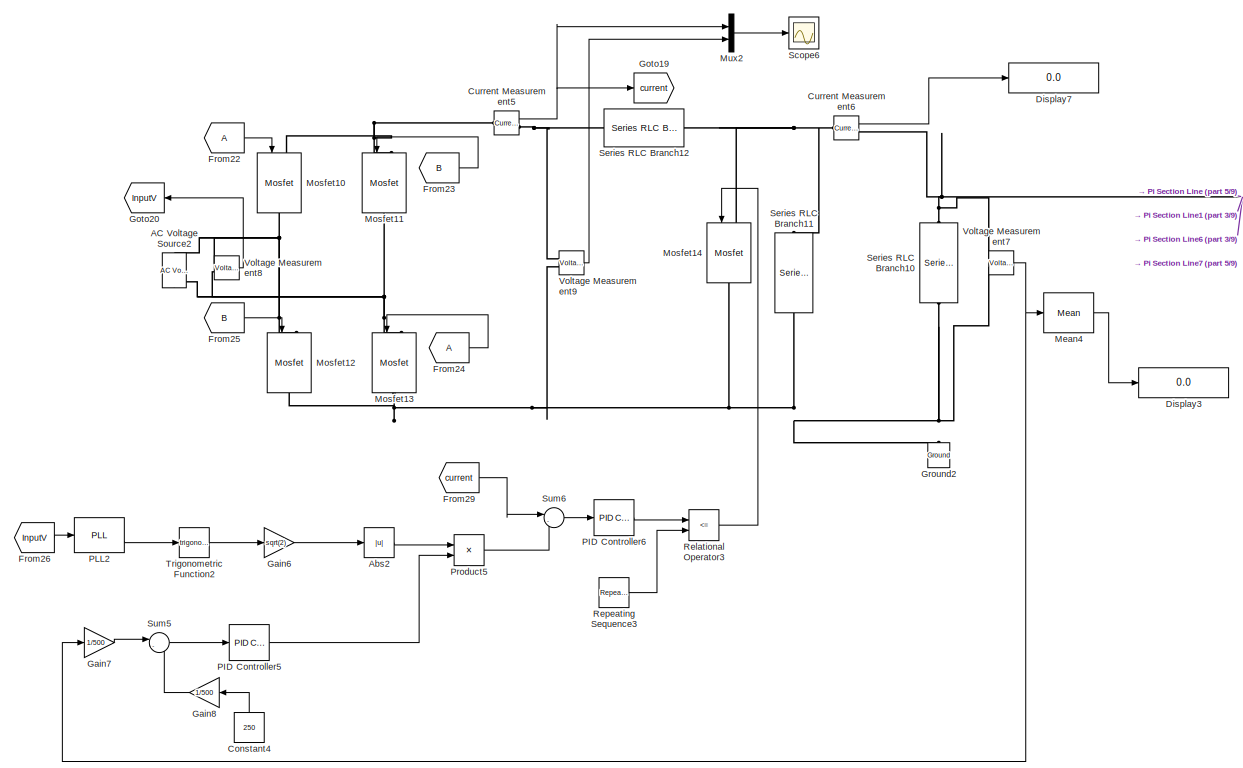
[diagram: root canvas - part 1/9, top center region]
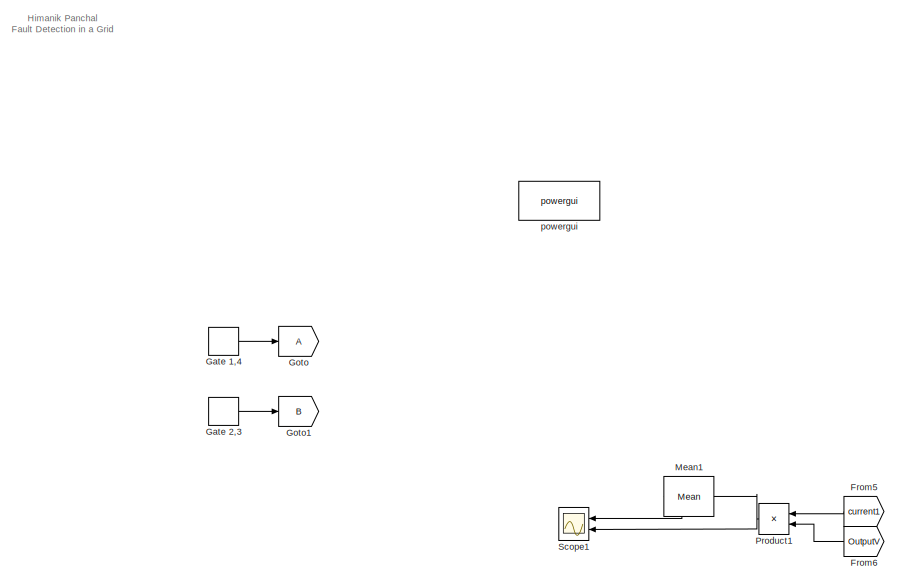
[diagram: root canvas - part 2/9, top center region]
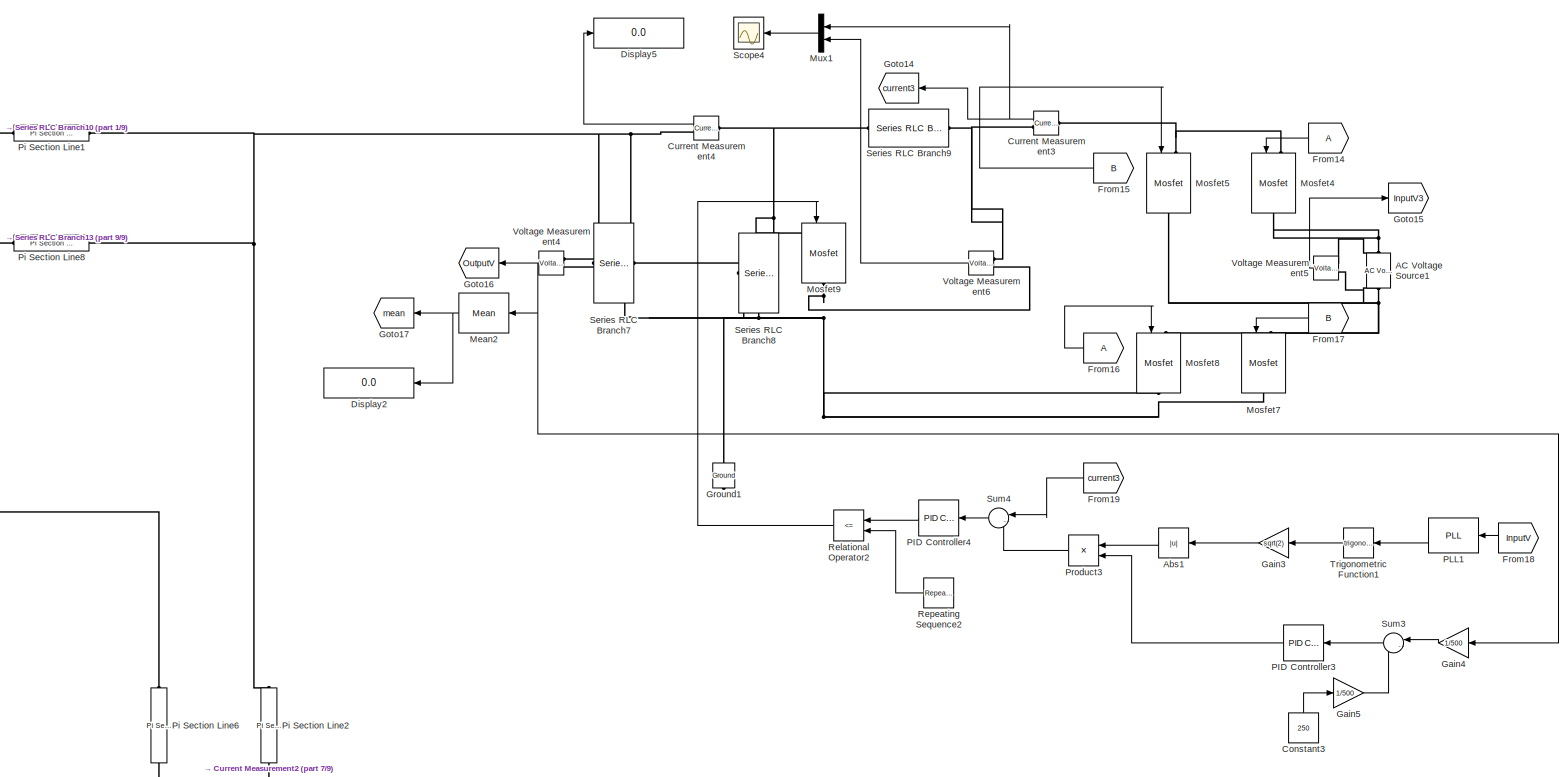
[diagram: root canvas - part 3/9, middle right region]
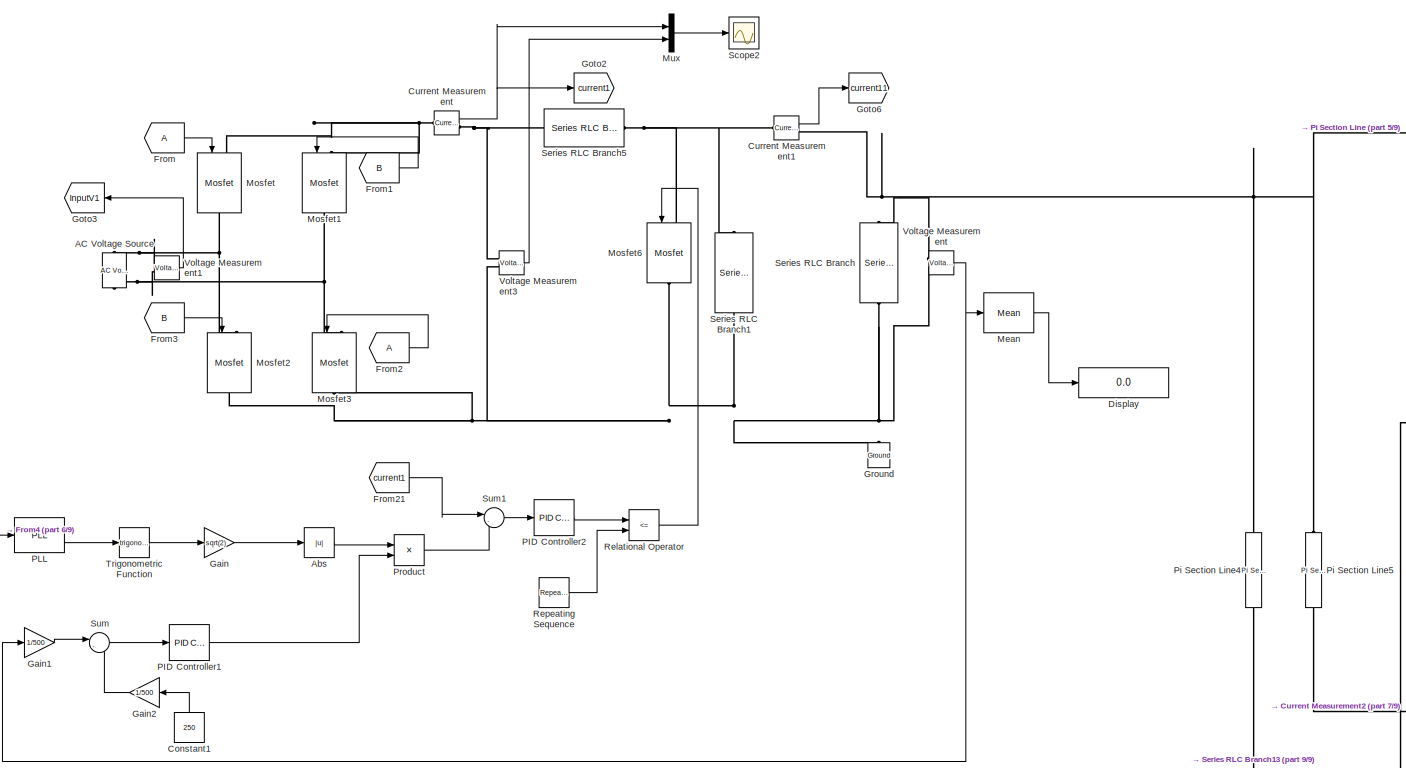
[diagram: root canvas - part 4/9, middle left region]
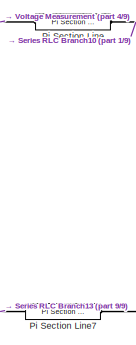
[diagram: root canvas - part 5/9, central region]
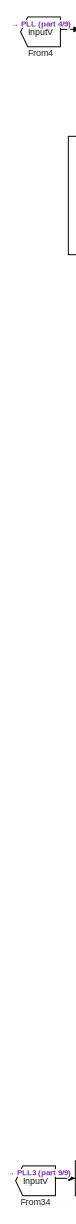
[diagram: root canvas - part 6/9, bottom left region]
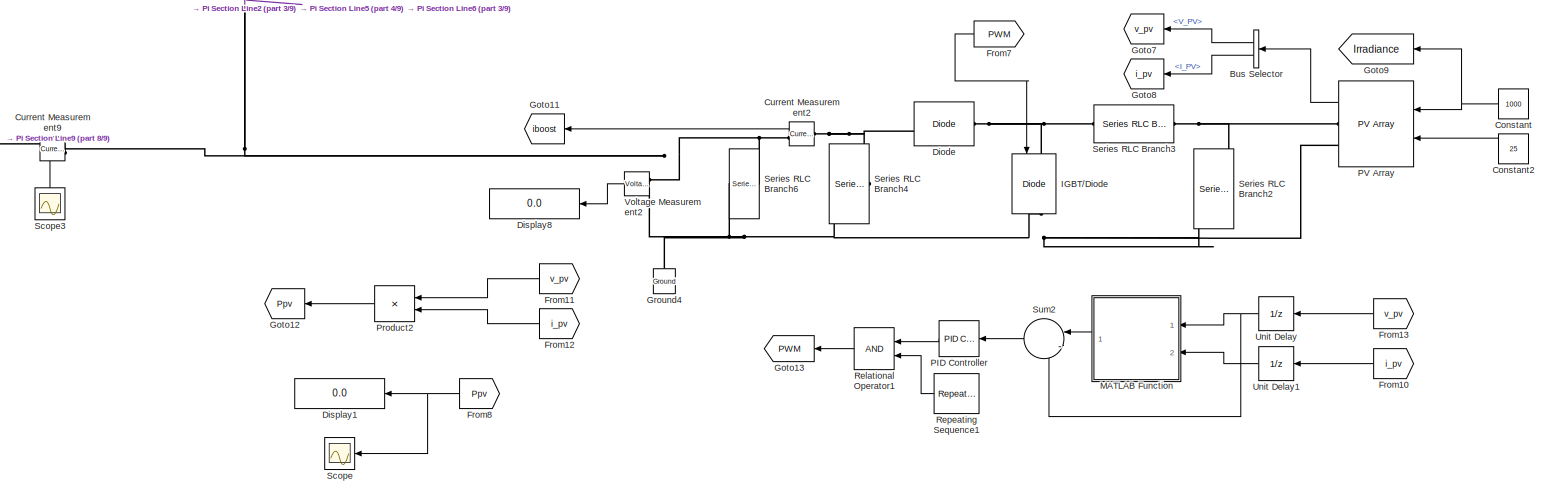
[diagram: root canvas - part 7/9, bottom right region]
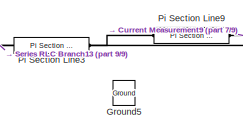
[diagram: root canvas - part 8/9, bottom center region]
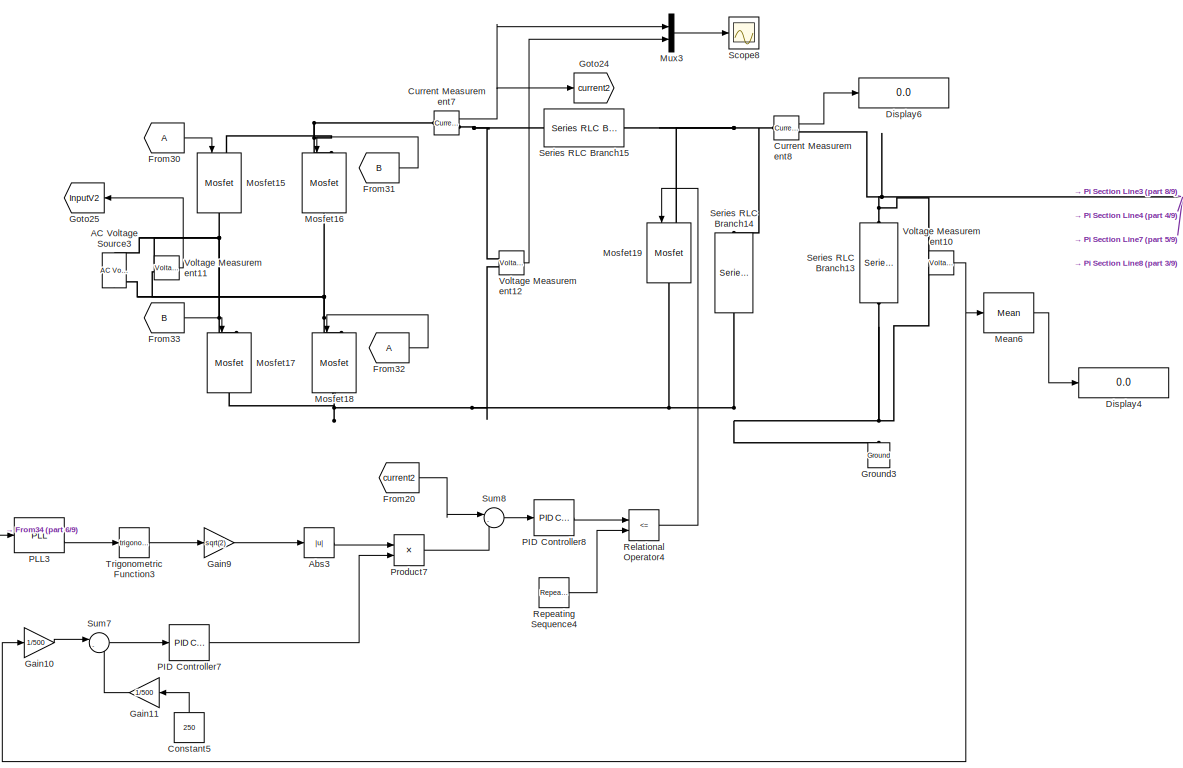
[diagram: root canvas - part 9/9, bottom left region]
MODEL slx_37d49d3421e3
KIND model
CONFIG AbsTol = auto
CONFIG EnableMultiTasking = off
CONFIG FixedStep = auto
CONFIG MaxStep = auto
CONFIG MinStep = auto
CONFIG RelTol = 1e-3
CONFIG SampleTimeConstraint = Unconstrained
CONFIG SolverName = VariableStepAuto
CONFIG StartTime = 0.0
CONFIG StopTime = 10.0
BLOCK [Reference] AC Voltage Source  REF=spsACVoltageSourceLib/AC Voltage Source
  Ports = [0, 0, 0, 0, 0, 1, 1]
  SourceBlock = spsACVoltageSourceLib/AC Voltage Source
  SourceProductBaseCode = PS
  SourceType = AC Voltage Source
BLOCK [Reference] AC Voltage Source1  REF=spsACVoltageSourceLib/AC Voltage Source
  Ports = [0, 0, 0, 0, 0, 1, 1]
  SourceBlock = spsACVoltageSourceLib/AC Voltage Source
  SourceProductBaseCode = PS
  SourceType = AC Voltage Source
BLOCK [Reference] AC Voltage Source2  REF=spsACVoltageSourceLib/AC Voltage Source
  Ports = [0, 0, 0, 0, 0, 1, 1]
  SourceBlock = spsACVoltageSourceLib/AC Voltage Source
  SourceProductBaseCode = PS
  SourceType = AC Voltage Source
BLOCK [Reference] AC Voltage Source3  REF=spsACVoltageSourceLib/AC Voltage Source
  Ports = [0, 0, 0, 0, 0, 1, 1]
  SourceBlock = spsACVoltageSourceLib/AC Voltage Source
  SourceProductBaseCode = PS
  SourceType = AC Voltage Source
BLOCK [Abs] Abs
  SaturateOnIntegerOverflow = off
BLOCK [Abs] Abs1
  SaturateOnIntegerOverflow = off
BLOCK [Abs] Abs2
  SaturateOnIntegerOverflow = off
BLOCK [Abs] Abs3
  SaturateOnIntegerOverflow = off
BLOCK [BusSelector] Bus Selector
  OutputSignals = V_PV,I_PV
  Ports = [1, 2]
BLOCK [Constant] Constant
  Value = 1000
BLOCK [Constant] Constant1
  NameLocation = right
  Value = 250
BLOCK [Constant] Constant2
  Value = 25
BLOCK [Constant] Constant3
  NameLocation = right
  Value = 250
BLOCK [Constant] Constant4
  NameLocation = right
  Value = 250
BLOCK [Constant] Constant5
  NameLocation = right
  Value = 250
BLOCK [Reference] Current Measurement  REF=spsCurrentMeasurementLib/Current Measurement
  Ports = [0, 1, 0, 0, 0, 1, 1]
  SourceBlock = spsCurrentMeasurementLib/Current Measurement
  SourceProductBaseCode = PS
  SourceType = Current Measurement
  UserDataPersistent = on
BLOCK [Reference] Current Measurement1  REF=spsCurrentMeasurementLib/Current Measurement
  Ports = [0, 1, 0, 0, 0, 1, 1]
  SourceBlock = spsCurrentMeasurementLib/Current Measurement
  SourceProductBaseCode = PS
  SourceType = Current Measurement
  UserDataPersistent = on
BLOCK [Reference] Current Measurement2  REF=spsCurrentMeasurementLib/Current Measurement
  Ports = [0, 1, 0, 0, 0, 1, 1]
  SourceBlock = spsCurrentMeasurementLib/Current Measurement
  SourceProductBaseCode = PS
  SourceType = Current Measurement
  UserDataPersistent = on
BLOCK [Reference] Current Measurement3  REF=spsCurrentMeasurementLib/Current Measurement
  Ports = [0, 1, 0, 0, 0, 1, 1]
  SourceBlock = spsCurrentMeasurementLib/Current Measurement
  SourceProductBaseCode = PS
  SourceType = Current Measurement
  UserDataPersistent = on
BLOCK [Reference] Current Measurement4  REF=spsCurrentMeasurementLib/Current Measurement
  Ports = [0, 1, 0, 0, 0, 1, 1]
  SourceBlock = spsCurrentMeasurementLib/Current Measurement
  SourceProductBaseCode = PS
  SourceType = Current Measurement
  UserDataPersistent = on
BLOCK [Reference] Current Measurement5  REF=spsCurrentMeasurementLib/Current Measurement
  Ports = [0, 1, 0, 0, 0, 1, 1]
  SourceBlock = spsCurrentMeasurementLib/Current Measurement
  SourceProductBaseCode = PS
  SourceType = Current Measurement
  UserDataPersistent = on
BLOCK [Reference] Current Measurement6  REF=spsCurrentMeasurementLib/Current Measurement
  Ports = [0, 1, 0, 0, 0, 1, 1]
  SourceBlock = spsCurrentMeasurementLib/Current Measurement
  SourceProductBaseCode = PS
  SourceType = Current Measurement
  UserDataPersistent = on
BLOCK [Reference] Current Measurement7  REF=spsCurrentMeasurementLib/Current Measurement
  Ports = [0, 1, 0, 0, 0, 1, 1]
  SourceBlock = spsCurrentMeasurementLib/Current Measurement
  SourceProductBaseCode = PS
  SourceType = Current Measurement
  UserDataPersistent = on
BLOCK [Reference] Current Measurement8  REF=spsCurrentMeasurementLib/Current Measurement
  Ports = [0, 1, 0, 0, 0, 1, 1]
  SourceBlock = spsCurrentMeasurementLib/Current Measurement
  SourceProductBaseCode = PS
  SourceType = Current Measurement
  UserDataPersistent = on
BLOCK [Reference] Current Measurement9  REF=spsCurrentMeasurementLib/Current Measurement
  NameLocation = top
  Ports = [0, 1, 0, 0, 0, 1, 1]
  SourceBlock = spsCurrentMeasurementLib/Current Measurement
  SourceProductBaseCode = PS
  SourceType = Current Measurement
  UserDataPersistent = on
BLOCK [Reference] Diode  REF=spsDiodeLib/Diode
  Ports = [0, 1, 0, 0, 0, 1, 1]
  SourceBlock = spsDiodeLib/Diode
  SourceProductBaseCode = PS
  SourceType = Diode
BLOCK [Display] Display
  Decimation = 1
  Ports = [1]
BLOCK [Display] Display1
  Decimation = 1
  Ports = [1]
BLOCK [Display] Display2
  Decimation = 1
  Ports = [1]
BLOCK [Display] Display3
  Decimation = 1
  Ports = [1]
BLOCK [Display] Display4
  Decimation = 1
  Ports = [1]
BLOCK [Display] Display5
  Decimation = 1
  Ports = [1]
BLOCK [Display] Display6
  Decimation = 1
  Ports = [1]
BLOCK [Display] Display7
  Decimation = 1
  Ports = [1]
BLOCK [Display] Display8
  Decimation = 1
  NameLocation = top
  Ports = [1]
BLOCK [From] From
BLOCK [From] From1
  GotoTag = B
BLOCK [From] From10
  GotoTag = i_pv
BLOCK [From] From11
  GotoTag = v_pv
BLOCK [From] From12
  GotoTag = i_pv
BLOCK [From] From13
  GotoTag = v_pv
BLOCK [From] From14
BLOCK [From] From15
  GotoTag = B
BLOCK [From] From16
BLOCK [From] From17
  GotoTag = B
BLOCK [From] From18
  GotoTag = InputV
  NameLocation = top
BLOCK [From] From19
  GotoTag = current3
BLOCK [From] From2
BLOCK [From] From20
  GotoTag = current2
BLOCK [From] From21
  GotoTag = current1
BLOCK [From] From22
BLOCK [From] From23
  GotoTag = B
BLOCK [From] From24
BLOCK [From] From25
  GotoTag = B
BLOCK [From] From26
  GotoTag = InputV
  NameLocation = top
BLOCK [From] From29
  GotoTag = current
BLOCK [From] From3
  GotoTag = B
BLOCK [From] From30
BLOCK [From] From31
  GotoTag = B
BLOCK [From] From32
BLOCK [From] From33
  GotoTag = B
BLOCK [From] From34
  GotoTag = InputV
  NameLocation = top
BLOCK [From] From4
  GotoTag = InputV
  NameLocation = top
BLOCK [From] From5
  GotoTag = current1
  NameLocation = top
BLOCK [From] From6
  GotoTag = OutputV
  NameLocation = top
BLOCK [From] From7
  GotoTag = PWM
BLOCK [From] From8
  GotoTag = Ppv
BLOCK [Gain] Gain
  Gain = sqrt(2)
BLOCK [Gain] Gain1
  Gain = 1/500
BLOCK [Gain] Gain10
  Gain = 1/500
BLOCK [Gain] Gain11
  Gain = 1/500
  NameLocation = top
BLOCK [Gain] Gain2
  Gain = 1/500
  NameLocation = top
BLOCK [Gain] Gain3
  Gain = sqrt(2)
BLOCK [Gain] Gain4
  Gain = 1/500
BLOCK [Gain] Gain5
  Gain = 1/500
  NameLocation = top
BLOCK [Gain] Gain6
  Gain = sqrt(2)
BLOCK [Gain] Gain7
  Gain = 1/500
BLOCK [Gain] Gain8
  Gain = 1/500
  NameLocation = top
BLOCK [Gain] Gain9
  Gain = sqrt(2)
BLOCK [DiscretePulseGenerator] Gate 1,4
  Period = 0.02
  PhaseDelay = 0.0033
  Ports = [0, 1]
  PulseType = Time based
  PulseWidth = 5
BLOCK [DiscretePulseGenerator] Gate 2,3
  Period = 0.02
  PhaseDelay = 0.0033 + 0.01
  Ports = [0, 1]
  PulseType = Time based
  PulseWidth = 5
BLOCK [Goto] Goto
BLOCK [Goto] Goto1
  GotoTag = B
BLOCK [Goto] Goto11
  GotoTag = iboost
BLOCK [Goto] Goto12
  GotoTag = Ppv
BLOCK [Goto] Goto13
  GotoTag = PWM
BLOCK [Goto] Goto14
  GotoTag = current3
BLOCK [Goto] Goto15
  GotoTag = InputV3
  NameLocation = top
BLOCK [Goto] Goto16
  GotoTag = OutputV
BLOCK [Goto] Goto17
  GotoTag = mean
BLOCK [Goto] Goto19
  GotoTag = current
BLOCK [Goto] Goto2
  GotoTag = current1
BLOCK [Goto] Goto20
  GotoTag = InputV
  NameLocation = top
BLOCK [Goto] Goto24
  GotoTag = current2
BLOCK [Goto] Goto25
  GotoTag = InputV2
  NameLocation = top
BLOCK [Goto] Goto3
  GotoTag = InputV1
  NameLocation = top
BLOCK [Goto] Goto6
  GotoTag = current11
BLOCK [Goto] Goto7
  GotoTag = v_pv
BLOCK [Goto] Goto8
  GotoTag = i_pv
BLOCK [Goto] Goto9
  GotoTag = Irradiance
BLOCK [Reference] Ground  REF=spsGroundLib/Ground
  NameLocation = right
  Ports = [0, 0, 0, 0, 0, 1]
  SourceBlock = spsGroundLib/Ground
  SourceProductBaseCode = PS
  SourceType = Ground
BLOCK [Reference] Ground1  REF=spsGroundLib/Ground
  NameLocation = right
  Ports = [0, 0, 0, 0, 0, 1]
  SourceBlock = spsGroundLib/Ground
  SourceProductBaseCode = PS
  SourceType = Ground
BLOCK [Reference] Ground2  REF=spsGroundLib/Ground
  NameLocation = right
  Ports = [0, 0, 0, 0, 0, 1]
  SourceBlock = spsGroundLib/Ground
  SourceProductBaseCode = PS
  SourceType = Ground
BLOCK [Reference] Ground3  REF=spsGroundLib/Ground
  NameLocation = right
  Ports = [0, 0, 0, 0, 0, 1]
  SourceBlock = spsGroundLib/Ground
  SourceProductBaseCode = PS
  SourceType = Ground
BLOCK [Reference] Ground4  REF=spsGroundLib/Ground
  NameLocation = right
  Ports = [0, 0, 0, 0, 0, 1]
  SourceBlock = spsGroundLib/Ground
  SourceProductBaseCode = PS
  SourceType = Ground
BLOCK [Reference] Ground5  REF=spsGroundLib/Ground
  NameLocation = right
  Ports = [0, 0, 0, 0, 0, 1]
  SourceBlock = spsGroundLib/Ground
  SourceProductBaseCode = PS
  SourceType = Ground
BLOCK [Reference] IGBT//Diode  REF=spsIGBTDiodeLib/IGBT//Diode
  NameLocation = left
  Ports = [1, 1, 0, 0, 0, 1, 1]
  SourceBlock = spsIGBTDiodeLib/IGBT//Diode
  SourceProductBaseCode = PS
  SourceType = IGBT/Diode
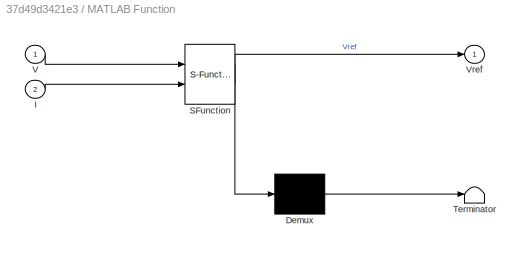
BLOCK [SubSystem] MATLAB Function
  ErrorFcn = Stateflow.Translate.translate
  PermitHierarchicalResolution = ExplicitOnly
  Ports = [2, 1]
  RequestExecContextInheritance = off
  SFBlockType = MATLAB Function
  TreatAsAtomicUnit = on
BLOCK [Demux] MATLAB Function/ Demux 
  Outputs = 1
  Ports = [1, 1]
BLOCK [S-Function] MATLAB Function/ SFunction 
  EnableBusSupport = on
  FunctionName = sf_sfun
  PortCounts = [2 2]
  Ports = [2, 2]
  SFcnIsStateOwnerBlock = off
  SFunctionDeploymentMode = off
  Tag = Stateflow S-Function 2
BLOCK [Terminator] MATLAB Function/ Terminator 
BLOCK [Inport] MATLAB Function/I
  Port = 2
BLOCK [Inport] MATLAB Function/V
BLOCK [Outport] MATLAB Function/Vref
BLOCK [Reference] Mean  REF=spsMeanLib/Mean
  Ports = [1, 1]
  SourceBlock = spsMeanLib/Mean
  SourceProductBaseCode = PS
  SourceType = Mean
BLOCK [Reference] Mean1  REF=spsMeanLib/Mean
  NameLocation = top
  Ports = [1, 1]
  SourceBlock = spsMeanLib/Mean
  SourceProductBaseCode = PS
  SourceType = Mean
BLOCK [Reference] Mean2  REF=spsMeanLib/Mean
  Ports = [1, 1]
  SourceBlock = spsMeanLib/Mean
  SourceProductBaseCode = PS
  SourceType = Mean
BLOCK [Reference] Mean4  REF=spsMeanLib/Mean
  Ports = [1, 1]
  SourceBlock = spsMeanLib/Mean
  SourceProductBaseCode = PS
  SourceType = Mean
BLOCK [Reference] Mean6  REF=spsMeanLib/Mean
  Ports = [1, 1]
  SourceBlock = spsMeanLib/Mean
  SourceProductBaseCode = PS
  SourceType = Mean
BLOCK [Reference] Mosfet  REF=spsMosfetLib/Mosfet
  NameLocation = left
  Ports = [1, 0, 0, 0, 0, 1, 1]
  SourceBlock = spsMosfetLib/Mosfet
  SourceProductBaseCode = PS
  SourceType = Mosfet
BLOCK [Reference] Mosfet1  REF=spsMosfetLib/Mosfet
  NameLocation = left
  Ports = [1, 0, 0, 0, 0, 1, 1]
  SourceBlock = spsMosfetLib/Mosfet
  SourceProductBaseCode = PS
  SourceType = Mosfet
BLOCK [Reference] Mosfet10  REF=spsMosfetLib/Mosfet
  NameLocation = left
  Ports = [1, 0, 0, 0, 0, 1, 1]
  SourceBlock = spsMosfetLib/Mosfet
  SourceProductBaseCode = PS
  SourceType = Mosfet
BLOCK [Reference] Mosfet11  REF=spsMosfetLib/Mosfet
  NameLocation = left
  Ports = [1, 0, 0, 0, 0, 1, 1]
  SourceBlock = spsMosfetLib/Mosfet
  SourceProductBaseCode = PS
  SourceType = Mosfet
BLOCK [Reference] Mosfet12  REF=spsMosfetLib/Mosfet
  NameLocation = left
  Ports = [1, 0, 0, 0, 0, 1, 1]
  SourceBlock = spsMosfetLib/Mosfet
  SourceProductBaseCode = PS
  SourceType = Mosfet
BLOCK [Reference] Mosfet13  REF=spsMosfetLib/Mosfet
  NameLocation = left
  Ports = [1, 0, 0, 0, 0, 1, 1]
  SourceBlock = spsMosfetLib/Mosfet
  SourceProductBaseCode = PS
  SourceType = Mosfet
BLOCK [Reference] Mosfet14  REF=spsMosfetLib/Mosfet
  NameLocation = left
  Ports = [1, 0, 0, 0, 0, 1, 1]
  SourceBlock = spsMosfetLib/Mosfet
  SourceProductBaseCode = PS
  SourceType = Mosfet
BLOCK [Reference] Mosfet15  REF=spsMosfetLib/Mosfet
  NameLocation = left
  Ports = [1, 0, 0, 0, 0, 1, 1]
  SourceBlock = spsMosfetLib/Mosfet
  SourceProductBaseCode = PS
  SourceType = Mosfet
BLOCK [Reference] Mosfet16  REF=spsMosfetLib/Mosfet
  NameLocation = left
  Ports = [1, 0, 0, 0, 0, 1, 1]
  SourceBlock = spsMosfetLib/Mosfet
  SourceProductBaseCode = PS
  SourceType = Mosfet
BLOCK [Reference] Mosfet17  REF=spsMosfetLib/Mosfet
  NameLocation = left
  Ports = [1, 0, 0, 0, 0, 1, 1]
  SourceBlock = spsMosfetLib/Mosfet
  SourceProductBaseCode = PS
  SourceType = Mosfet
BLOCK [Reference] Mosfet18  REF=spsMosfetLib/Mosfet
  NameLocation = left
  Ports = [1, 0, 0, 0, 0, 1, 1]
  SourceBlock = spsMosfetLib/Mosfet
  SourceProductBaseCode = PS
  SourceType = Mosfet
BLOCK [Reference] Mosfet19  REF=spsMosfetLib/Mosfet
  NameLocation = left
  Ports = [1, 0, 0, 0, 0, 1, 1]
  SourceBlock = spsMosfetLib/Mosfet
  SourceProductBaseCode = PS
  SourceType = Mosfet
BLOCK [Reference] Mosfet2  REF=spsMosfetLib/Mosfet
  NameLocation = left
  Ports = [1, 0, 0, 0, 0, 1, 1]
  SourceBlock = spsMosfetLib/Mosfet
  SourceProductBaseCode = PS
  SourceType = Mosfet
BLOCK [Reference] Mosfet3  REF=spsMosfetLib/Mosfet
  NameLocation = left
  Ports = [1, 0, 0, 0, 0, 1, 1]
  SourceBlock = spsMosfetLib/Mosfet
  SourceProductBaseCode = PS
  SourceType = Mosfet
BLOCK [Reference] Mosfet4  REF=spsMosfetLib/Mosfet
  NameLocation = left
  Ports = [1, 0, 0, 0, 0, 1, 1]
  SourceBlock = spsMosfetLib/Mosfet
  SourceProductBaseCode = PS
  SourceType = Mosfet
BLOCK [Reference] Mosfet5  REF=spsMosfetLib/Mosfet
  NameLocation = left
  Ports = [1, 0, 0, 0, 0, 1, 1]
  SourceBlock = spsMosfetLib/Mosfet
  SourceProductBaseCode = PS
  SourceType = Mosfet
BLOCK [Reference] Mosfet6  REF=spsMosfetLib/Mosfet
  NameLocation = left
  Ports = [1, 0, 0, 0, 0, 1, 1]
  SourceBlock = spsMosfetLib/Mosfet
  SourceProductBaseCode = PS
  SourceType = Mosfet
BLOCK [Reference] Mosfet7  REF=spsMosfetLib/Mosfet
  NameLocation = left
  Ports = [1, 0, 0, 0, 0, 1, 1]
  SourceBlock = spsMosfetLib/Mosfet
  SourceProductBaseCode = PS
  SourceType = Mosfet
BLOCK [Reference] Mosfet8  REF=spsMosfetLib/Mosfet
  NameLocation = left
  Ports = [1, 0, 0, 0, 0, 1, 1]
  SourceBlock = spsMosfetLib/Mosfet
  SourceProductBaseCode = PS
  SourceType = Mosfet
BLOCK [Reference] Mosfet9  REF=spsMosfetLib/Mosfet
  NameLocation = left
  Ports = [1, 0, 0, 0, 0, 1, 1]
  SourceBlock = spsMosfetLib/Mosfet
  SourceProductBaseCode = PS
  SourceType = Mosfet
BLOCK [Mux] Mux
  DisplayOption = bar
  Inputs = 2
  Ports = [2, 1]
BLOCK [Mux] Mux1
  DisplayOption = bar
  Inputs = 2
  Ports = [2, 1]
BLOCK [Mux] Mux2
  DisplayOption = bar
  Inputs = 2
  Ports = [2, 1]
BLOCK [Mux] Mux3
  DisplayOption = bar
  Inputs = 2
  Ports = [2, 1]
BLOCK [Reference] PID Controller  REF=pid_lib/PID Controller
  Ports = [1, 1]
  SourceBlock = pid_lib/PID Controller
  SourceProductBaseCode = SL
  SourceType = PID 1dof
BLOCK [Reference] PID Controller1  REF=pid_lib/PID Controller
  Ports = [1, 1]
  SourceBlock = pid_lib/PID Controller
  SourceProductBaseCode = SL
  SourceType = PID 1dof
BLOCK [Reference] PID Controller2  REF=pid_lib/PID Controller
  Ports = [1, 1]
  SourceBlock = pid_lib/PID Controller
  SourceProductBaseCode = SL
  SourceType = PID 1dof
BLOCK [Reference] PID Controller3  REF=pid_lib/PID Controller
  Ports = [1, 1]
  SourceBlock = pid_lib/PID Controller
  SourceProductBaseCode = SL
  SourceType = PID 1dof
BLOCK [Reference] PID Controller4  REF=pid_lib/PID Controller
  Ports = [1, 1]
  SourceBlock = pid_lib/PID Controller
  SourceProductBaseCode = SL
  SourceType = PID 1dof
BLOCK [Reference] PID Controller5  REF=pid_lib/PID Controller
  Ports = [1, 1]
  SourceBlock = pid_lib/PID Controller
  SourceProductBaseCode = SL
  SourceType = PID 1dof
BLOCK [Reference] PID Controller6  REF=pid_lib/PID Controller
  Ports = [1, 1]
  SourceBlock = pid_lib/PID Controller
  SourceProductBaseCode = SL
  SourceType = PID 1dof
BLOCK [Reference] PID Controller7  REF=pid_lib/PID Controller
  Ports = [1, 1]
  SourceBlock = pid_lib/PID Controller
  SourceProductBaseCode = SL
  SourceType = PID 1dof
BLOCK [Reference] PID Controller8  REF=pid_lib/PID Controller
  Ports = [1, 1]
  SourceBlock = pid_lib/PID Controller
  SourceProductBaseCode = SL
  SourceType = PID 1dof
BLOCK [Reference] PLL  REF=spsPLLLib/PLL
  Ports = [1, 2]
  SourceBlock = spsPLLLib/PLL
  SourceProductBaseCode = PS
  SourceType = PLL
BLOCK [Reference] PLL1  REF=spsPLLLib/PLL
  Ports = [1, 2]
  SourceBlock = spsPLLLib/PLL
  SourceProductBaseCode = PS
  SourceType = PLL
BLOCK [Reference] PLL2  REF=spsPLLLib/PLL
  Ports = [1, 2]
  SourceBlock = spsPLLLib/PLL
  SourceProductBaseCode = PS
  SourceType = PLL
BLOCK [Reference] PLL3  REF=spsPLLLib/PLL
  Ports = [1, 2]
  SourceBlock = spsPLLLib/PLL
  SourceProductBaseCode = PS
  SourceType = PLL
BLOCK [Reference] PV Array  REF=spsPVArrayLib/PV Array
  Ports = [2, 1, 0, 0, 0, 0, 2]
  SourceBlock = spsPVArrayLib/PV Array
  SourceProductBaseCode = PS
  SourceType = PV array
BLOCK [Reference] Pi Section Line  REF=spsPiSectionLineLib/Pi Section Line
  AttributesFormatString = \n
  Ports = [0, 0, 0, 0, 0, 1, 1]
  SourceBlock = spsPiSectionLineLib/Pi Section Line
  SourceProductBaseCode = PS
  SourceType = Pi Section Line
BLOCK [Reference] Pi Section Line1  REF=spsPiSectionLineLib/Pi Section Line
  AttributesFormatString = \n
  Ports = [0, 0, 0, 0, 0, 1, 1]
  SourceBlock = spsPiSectionLineLib/Pi Section Line
  SourceProductBaseCode = PS
  SourceType = Pi Section Line
BLOCK [Reference] Pi Section Line2  REF=spsPiSectionLineLib/Pi Section Line
  AttributesFormatString = \n
  NameLocation = left
  Ports = [0, 0, 0, 0, 0, 1, 1]
  SourceBlock = spsPiSectionLineLib/Pi Section Line
  SourceProductBaseCode = PS
  SourceType = Pi Section Line
BLOCK [Reference] Pi Section Line3  REF=spsPiSectionLineLib/Pi Section Line
  AttributesFormatString = \n
  NameLocation = top
  Ports = [0, 0, 0, 0, 0, 1, 1]
  SourceBlock = spsPiSectionLineLib/Pi Section Line
  SourceProductBaseCode = PS
  SourceType = Pi Section Line
BLOCK [Reference] Pi Section Line4  REF=spsPiSectionLineLib/Pi Section Line
  AttributesFormatString = \n
  NameLocation = left
  Ports = [0, 0, 0, 0, 0, 1, 1]
  SourceBlock = spsPiSectionLineLib/Pi Section Line
  SourceProductBaseCode = PS
  SourceType = Pi Section Line
BLOCK [Reference] Pi Section Line5  REF=spsPiSectionLineLib/Pi Section Line
  AttributesFormatString = \n
  NameLocation = left
  Ports = [0, 0, 0, 0, 0, 1, 1]
  SourceBlock = spsPiSectionLineLib/Pi Section Line
  SourceProductBaseCode = PS
  SourceType = Pi Section Line
BLOCK [Reference] Pi Section Line6  REF=spsPiSectionLineLib/Pi Section Line
  AttributesFormatString = \n
  NameLocation = left
  Ports = [0, 0, 0, 0, 0, 1, 1]
  SourceBlock = spsPiSectionLineLib/Pi Section Line
  SourceProductBaseCode = PS
  SourceType = Pi Section Line
BLOCK [Reference] Pi Section Line7  REF=spsPiSectionLineLib/Pi Section Line
  AttributesFormatString = \n
  Ports = [0, 0, 0, 0, 0, 1, 1]
  SourceBlock = spsPiSectionLineLib/Pi Section Line
  SourceProductBaseCode = PS
  SourceType = Pi Section Line
BLOCK [Reference] Pi Section Line8  REF=spsPiSectionLineLib/Pi Section Line
  AttributesFormatString = \n
  Ports = [0, 0, 0, 0, 0, 1, 1]
  SourceBlock = spsPiSectionLineLib/Pi Section Line
  SourceProductBaseCode = PS
  SourceType = Pi Section Line
BLOCK [Reference] Pi Section Line9  REF=spsPiSectionLineLib/Pi Section Line
  AttributesFormatString = \n
  NameLocation = top
  Ports = [0, 0, 0, 0, 0, 1, 1]
  SourceBlock = spsPiSectionLineLib/Pi Section Line
  SourceProductBaseCode = PS
  SourceType = Pi Section Line
BLOCK [Product] Product
  Ports = [2, 1]
BLOCK [Product] Product1
  NameLocation = top
  Ports = [2, 1]
BLOCK [Product] Product2
  Ports = [2, 1]
BLOCK [Product] Product3
  Ports = [2, 1]
BLOCK [Product] Product5
  Ports = [2, 1]
BLOCK [Product] Product7
  Ports = [2, 1]
BLOCK [RelationalOperator] Relational Operator
  InputSameDT = off
  Operator = <=
  OutDataTypeStr = boolean
  Ports = [2, 1]
  RndMeth = Simplest
BLOCK [RelationalOperator] Relational Operator1
  InputSameDT = off
  OutDataTypeStr = boolean
  Ports = [2, 1]
  RndMeth = Simplest
BLOCK [RelationalOperator] Relational Operator2
  InputSameDT = off
  Operator = <=
  OutDataTypeStr = boolean
  Ports = [2, 1]
  RndMeth = Simplest
BLOCK [RelationalOperator] Relational Operator3
  InputSameDT = off
  Operator = <=
  OutDataTypeStr = boolean
  Ports = [2, 1]
  RndMeth = Simplest
BLOCK [RelationalOperator] Relational Operator4
  InputSameDT = off
  Operator = <=
  OutDataTypeStr = boolean
  Ports = [2, 1]
  RndMeth = Simplest
BLOCK [Reference] Repeating Sequence  REF=simulink/Sources/Repeating
Sequence
  Ports = [0, 1]
  SourceBlock = simulink/Sources/Repeating\nSequence
  SourceProductBaseCode = SL
  SourceType = Repeating table
BLOCK [Reference] Repeating Sequence1  REF=simulink/Sources/Repeating
Sequence
  Ports = [0, 1]
  SourceBlock = simulink/Sources/Repeating\nSequence
  SourceProductBaseCode = SL
  SourceType = Repeating table
BLOCK [Reference] Repeating Sequence2  REF=simulink/Sources/Repeating
Sequence
  Ports = [0, 1]
  SourceBlock = simulink/Sources/Repeating\nSequence
  SourceProductBaseCode = SL
  SourceType = Repeating table
BLOCK [Reference] Repeating Sequence3  REF=simulink/Sources/Repeating
Sequence
  Ports = [0, 1]
  SourceBlock = simulink/Sources/Repeating\nSequence
  SourceProductBaseCode = SL
  SourceType = Repeating table
BLOCK [Reference] Repeating Sequence4  REF=simulink/Sources/Repeating
Sequence
  Ports = [0, 1]
  SourceBlock = simulink/Sources/Repeating\nSequence
  SourceProductBaseCode = SL
  SourceType = Repeating table
BLOCK [Scope] Scope
  Floating = off
  NumInputPorts = 1
  Ports = [1]
  ScopeSpecificationString = Simulink.scopes.TimeScopeBlockCfg('CurrentConfiguration', extmgr.ConfigurationSet(extmgr.Configuration('Core','General UI',true),extmgr.Configuration('Core','Source UI',true),extmgr.Configuration('Sources','WiredSimulink',true,'DataLoggingVariableName','ScopeData2'),extmgr.Configuration('Visuals','Time Domain',true,'SerializedDisplays',{struct('MinYLimReal','-6458397.12513','MaxYLimReal','1073274....<+1513ch>
BLOCK [Scope] Scope1
  Floating = off
  NameLocation = top
  NumInputPorts = 2
  Ports = [2]
  ScopeSpecificationString = Simulink.scopes.TimeScopeBlockCfg('CurrentConfiguration', extmgr.ConfigurationSet(extmgr.Configuration('Core','General UI',true),extmgr.Configuration('Core','Source UI',true),extmgr.Configuration('Sources','WiredSimulink',true,'DataLoggingVariableName','ScopeData1'),extmgr.Configuration('Visuals','Time Domain',true,'SerializedDisplays',{struct('MinYLimReal','-39.13539','MaxYLimReal','352.21853','Y...<+1485ch>
BLOCK [Scope] Scope2
  Floating = off
  NumInputPorts = 1
  Ports = [1]
  ScopeSpecificationString = Simulink.scopes.TimeScopeBlockCfg('CurrentConfiguration', extmgr.ConfigurationSet(extmgr.Configuration('Core','General UI',true),extmgr.Configuration('Core','Source UI',true),extmgr.Configuration('Sources','WiredSimulink',true),extmgr.Configuration('Visuals','Time Domain',true,'SerializedDisplays',{struct('MinYLimReal','-260.06899','MaxYLimReal','2169.54375','YLabelReal','','MinYLimMag',' 0.00000'...<+1438ch>
BLOCK [Scope] Scope3
  Floating = off
  NumInputPorts = 1
  Ports = [1]
  ScopeSpecificationString = Simulink.scopes.TimeScopeBlockCfg('CurrentConfiguration', extmgr.ConfigurationSet(extmgr.Configuration('Core','General UI',true),extmgr.Configuration('Core','Source UI',true),extmgr.Configuration('Sources','WiredSimulink',true,'DataLoggingVariableName','ScopeData1'),extmgr.Configuration('Visuals','Time Domain',true,'SerializedDisplays',{struct('MinYLimReal','-229.83869','MaxYLimReal','2068.54818',...<+1497ch>
BLOCK [Scope] Scope4
  Floating = off
  NumInputPorts = 1
  Ports = [1]
  ScopeSpecificationString = Simulink.scopes.TimeScopeBlockCfg('CurrentConfiguration', extmgr.ConfigurationSet(extmgr.Configuration('Core','General UI',true),extmgr.Configuration('Core','Source UI',true),extmgr.Configuration('Sources','WiredSimulink',true,'DataLoggingVariableName','ScopeData2'),extmgr.Configuration('Visuals','Time Domain',true,'SerializedDisplays',{struct('MinYLimReal','-260.06899','MaxYLimReal','2169.54375',...<+1477ch>
BLOCK [Scope] Scope6
  Floating = off
  NumInputPorts = 1
  Ports = [1]
  ScopeSpecificationString = Simulink.scopes.TimeScopeBlockCfg('CurrentConfiguration', extmgr.ConfigurationSet(extmgr.Configuration('Core','General UI',true),extmgr.Configuration('Core','Source UI',true),extmgr.Configuration('Sources','WiredSimulink',true,'DataLoggingVariableName','ScopeData4'),extmgr.Configuration('Visuals','Time Domain',true,'SerializedDisplays',{struct('MinYLimReal','-260.06899','MaxYLimReal','2169.54375',...<+1477ch>
BLOCK [Scope] Scope8
  Floating = off
  NumInputPorts = 1
  Ports = [1]
  ScopeSpecificationString = Simulink.scopes.TimeScopeBlockCfg('CurrentConfiguration', extmgr.ConfigurationSet(extmgr.Configuration('Core','General UI',true),extmgr.Configuration('Core','Source UI',true),extmgr.Configuration('Sources','WiredSimulink',true,'DataLoggingVariableName','ScopeData6'),extmgr.Configuration('Visuals','Time Domain',true,'SerializedDisplays',{struct('MinYLimReal','-260.06899','MaxYLimReal','2169.54375',...<+1477ch>
BLOCK [Reference] Series RLC Branch  REF=spsSeriesRLCBranchLib/Series RLC Branch
  NameLocation = left
  Ports = [0, 0, 0, 0, 0, 1, 1]
  SourceBlock = spsSeriesRLCBranchLib/Series RLC Branch
  SourceProductBaseCode = PS
  SourceType = Series RLC Branch
BLOCK [Reference] Series RLC Branch1  REF=spsSeriesRLCBranchLib/Series RLC Branch
  NameLocation = left
  Ports = [0, 0, 0, 0, 0, 1, 1]
  SourceBlock = spsSeriesRLCBranchLib/Series RLC Branch
  SourceProductBaseCode = PS
  SourceType = Series RLC Branch
BLOCK [Reference] Series RLC Branch10  REF=spsSeriesRLCBranchLib/Series RLC Branch
  NameLocation = left
  Ports = [0, 0, 0, 0, 0, 1, 1]
  SourceBlock = spsSeriesRLCBranchLib/Series RLC Branch
  SourceProductBaseCode = PS
  SourceType = Series RLC Branch
BLOCK [Reference] Series RLC Branch11  REF=spsSeriesRLCBranchLib/Series RLC Branch
  NameLocation = left
  Ports = [0, 0, 0, 0, 0, 1, 1]
  SourceBlock = spsSeriesRLCBranchLib/Series RLC Branch
  SourceProductBaseCode = PS
  SourceType = Series RLC Branch
BLOCK [Reference] Series RLC Branch12  REF=spsSeriesRLCBranchLib/Series RLC Branch
  NameLocation = top
  Ports = [0, 0, 0, 0, 0, 1, 1]
  SourceBlock = spsSeriesRLCBranchLib/Series RLC Branch
  SourceProductBaseCode = PS
  SourceType = Series RLC Branch
BLOCK [Reference] Series RLC Branch13  REF=spsSeriesRLCBranchLib/Series RLC Branch
  NameLocation = left
  Ports = [0, 0, 0, 0, 0, 1, 1]
  SourceBlock = spsSeriesRLCBranchLib/Series RLC Branch
  SourceProductBaseCode = PS
  SourceType = Series RLC Branch
BLOCK [Reference] Series RLC Branch14  REF=spsSeriesRLCBranchLib/Series RLC Branch
  NameLocation = left
  Ports = [0, 0, 0, 0, 0, 1, 1]
  SourceBlock = spsSeriesRLCBranchLib/Series RLC Branch
  SourceProductBaseCode = PS
  SourceType = Series RLC Branch
BLOCK [Reference] Series RLC Branch15  REF=spsSeriesRLCBranchLib/Series RLC Branch
  NameLocation = top
  Ports = [0, 0, 0, 0, 0, 1, 1]
  SourceBlock = spsSeriesRLCBranchLib/Series RLC Branch
  SourceProductBaseCode = PS
  SourceType = Series RLC Branch
BLOCK [Reference] Series RLC Branch2  REF=spsSeriesRLCBranchLib/Series RLC Branch
  NameLocation = left
  Ports = [0, 0, 0, 0, 0, 1, 1]
  SourceBlock = spsSeriesRLCBranchLib/Series RLC Branch
  SourceProductBaseCode = PS
  SourceType = Series RLC Branch
BLOCK [Reference] Series RLC Branch3  REF=spsSeriesRLCBranchLib/Series RLC Branch
  NameLocation = top
  Ports = [0, 0, 0, 0, 0, 1, 1]
  SourceBlock = spsSeriesRLCBranchLib/Series RLC Branch
  SourceProductBaseCode = PS
  SourceType = Series RLC Branch
BLOCK [Reference] Series RLC Branch4  REF=spsSeriesRLCBranchLib/Series RLC Branch
  NameLocation = left
  Ports = [0, 0, 0, 0, 0, 1, 1]
  SourceBlock = spsSeriesRLCBranchLib/Series RLC Branch
  SourceProductBaseCode = PS
  SourceType = Series RLC Branch
BLOCK [Reference] Series RLC Branch5  REF=spsSeriesRLCBranchLib/Series RLC Branch
  NameLocation = top
  Ports = [0, 0, 0, 0, 0, 1, 1]
  SourceBlock = spsSeriesRLCBranchLib/Series RLC Branch
  SourceProductBaseCode = PS
  SourceType = Series RLC Branch
BLOCK [Reference] Series RLC Branch6  REF=spsSeriesRLCBranchLib/Series RLC Branch
  NameLocation = left
  Ports = [0, 0, 0, 0, 0, 1, 1]
  SourceBlock = spsSeriesRLCBranchLib/Series RLC Branch
  SourceProductBaseCode = PS
  SourceType = Series RLC Branch
BLOCK [Reference] Series RLC Branch7  REF=spsSeriesRLCBranchLib/Series RLC Branch
  NameLocation = left
  Ports = [0, 0, 0, 0, 0, 1, 1]
  SourceBlock = spsSeriesRLCBranchLib/Series RLC Branch
  SourceProductBaseCode = PS
  SourceType = Series RLC Branch
BLOCK [Reference] Series RLC Branch8  REF=spsSeriesRLCBranchLib/Series RLC Branch
  NameLocation = left
  Ports = [0, 0, 0, 0, 0, 1, 1]
  SourceBlock = spsSeriesRLCBranchLib/Series RLC Branch
  SourceProductBaseCode = PS
  SourceType = Series RLC Branch
BLOCK [Reference] Series RLC Branch9  REF=spsSeriesRLCBranchLib/Series RLC Branch
  NameLocation = top
  Ports = [0, 0, 0, 0, 0, 1, 1]
  SourceBlock = spsSeriesRLCBranchLib/Series RLC Branch
  SourceProductBaseCode = PS
  SourceType = Series RLC Branch
BLOCK [Sum] Sum
  Inputs = |-+
  Ports = [2, 1]
BLOCK [Sum] Sum1
  Inputs = |-+
  Ports = [2, 1]
BLOCK [Sum] Sum2
  Inputs = |-+
  Ports = [2, 1]
BLOCK [Sum] Sum3
  Inputs = |-+
  Ports = [2, 1]
BLOCK [Sum] Sum4
  Inputs = |-+
  Ports = [2, 1]
BLOCK [Sum] Sum5
  Inputs = |-+
  Ports = [2, 1]
BLOCK [Sum] Sum6
  Inputs = |-+
  Ports = [2, 1]
BLOCK [Sum] Sum7
  Inputs = |-+
  Ports = [2, 1]
BLOCK [Sum] Sum8
  Inputs = |-+
  Ports = [2, 1]
BLOCK [Trigonometry] Trigonometric Function
  Ports = [1, 1]
BLOCK [Trigonometry] Trigonometric Function1
  Ports = [1, 1]
BLOCK [Trigonometry] Trigonometric Function2
  Ports = [1, 1]
BLOCK [Trigonometry] Trigonometric Function3
  Ports = [1, 1]
BLOCK [UnitDelay] Unit Delay
  HasFrameUpgradeWarning = on
  SampleTime = -1
BLOCK [UnitDelay] Unit Delay1
  HasFrameUpgradeWarning = on
  SampleTime = -1
BLOCK [Reference] Voltage Measurement  REF=spsVoltageMeasurementLib/Voltage Measurement
  Ports = [0, 1, 0, 0, 0, 2]
  SourceBlock = spsVoltageMeasurementLib/Voltage Measurement
  SourceProductBaseCode = PS
  SourceType = Voltage Measurement
  UserDataPersistent = on
BLOCK [Reference] Voltage Measurement1  REF=spsVoltageMeasurementLib/Voltage Measurement
  Ports = [0, 1, 0, 0, 0, 2]
  SourceBlock = spsVoltageMeasurementLib/Voltage Measurement
  SourceProductBaseCode = PS
  SourceType = Voltage Measurement
  UserDataPersistent = on
BLOCK [Reference] Voltage Measurement10  REF=spsVoltageMeasurementLib/Voltage Measurement
  Ports = [0, 1, 0, 0, 0, 2]
  SourceBlock = spsVoltageMeasurementLib/Voltage Measurement
  SourceProductBaseCode = PS
  SourceType = Voltage Measurement
  UserDataPersistent = on
BLOCK [Reference] Voltage Measurement11  REF=spsVoltageMeasurementLib/Voltage Measurement
  Ports = [0, 1, 0, 0, 0, 2]
  SourceBlock = spsVoltageMeasurementLib/Voltage Measurement
  SourceProductBaseCode = PS
  SourceType = Voltage Measurement
  UserDataPersistent = on
BLOCK [Reference] Voltage Measurement12  REF=spsVoltageMeasurementLib/Voltage Measurement
  Ports = [0, 1, 0, 0, 0, 2]
  SourceBlock = spsVoltageMeasurementLib/Voltage Measurement
  SourceProductBaseCode = PS
  SourceType = Voltage Measurement
  UserDataPersistent = on
BLOCK [Reference] Voltage Measurement2  REF=spsVoltageMeasurementLib/Voltage Measurement
  Ports = [0, 1, 0, 0, 0, 2]
  SourceBlock = spsVoltageMeasurementLib/Voltage Measurement
  SourceProductBaseCode = PS
  SourceType = Voltage Measurement
  UserDataPersistent = on
BLOCK [Reference] Voltage Measurement3  REF=spsVoltageMeasurementLib/Voltage Measurement
  Ports = [0, 1, 0, 0, 0, 2]
  SourceBlock = spsVoltageMeasurementLib/Voltage Measurement
  SourceProductBaseCode = PS
  SourceType = Voltage Measurement
  UserDataPersistent = on
BLOCK [Reference] Voltage Measurement4  REF=spsVoltageMeasurementLib/Voltage Measurement
  Ports = [0, 1, 0, 0, 0, 2]
  SourceBlock = spsVoltageMeasurementLib/Voltage Measurement
  SourceProductBaseCode = PS
  SourceType = Voltage Measurement
  UserDataPersistent = on
BLOCK [Reference] Voltage Measurement5  REF=spsVoltageMeasurementLib/Voltage Measurement
  Ports = [0, 1, 0, 0, 0, 2]
  SourceBlock = spsVoltageMeasurementLib/Voltage Measurement
  SourceProductBaseCode = PS
  SourceType = Voltage Measurement
  UserDataPersistent = on
BLOCK [Reference] Voltage Measurement6  REF=spsVoltageMeasurementLib/Voltage Measurement
  Ports = [0, 1, 0, 0, 0, 2]
  SourceBlock = spsVoltageMeasurementLib/Voltage Measurement
  SourceProductBaseCode = PS
  SourceType = Voltage Measurement
  UserDataPersistent = on
BLOCK [Reference] Voltage Measurement7  REF=spsVoltageMeasurementLib/Voltage Measurement
  Ports = [0, 1, 0, 0, 0, 2]
  SourceBlock = spsVoltageMeasurementLib/Voltage Measurement
  SourceProductBaseCode = PS
  SourceType = Voltage Measurement
  UserDataPersistent = on
BLOCK [Reference] Voltage Measurement8  REF=spsVoltageMeasurementLib/Voltage Measurement
  Ports = [0, 1, 0, 0, 0, 2]
  SourceBlock = spsVoltageMeasurementLib/Voltage Measurement
  SourceProductBaseCode = PS
  SourceType = Voltage Measurement
  UserDataPersistent = on
BLOCK [Reference] Voltage Measurement9  REF=spsVoltageMeasurementLib/Voltage Measurement
  Ports = [0, 1, 0, 0, 0, 2]
  SourceBlock = spsVoltageMeasurementLib/Voltage Measurement
  SourceProductBaseCode = PS
  SourceType = Voltage Measurement
  UserDataPersistent = on
BLOCK [Reference] powergui  REF=spspowerguiLib/powergui
  Ports = []
  Priority = 1
  SourceBlock = spspowerguiLib/powergui
  SourceProductBaseCode = PS
  SourceType = PSB option menu block
ANNOTATION (root): Himanik Panchal Fault Detection in a Grid
LINE Abs1:1 -> Product3:1
LINE Abs2:1 -> Product5:1
LINE Abs3:1 -> Product7:1
LINE Abs:1 -> Product:1
LINE Bus Selector:1 -> Goto7:1
LINE Bus Selector:2 -> Goto8:1
LINE Constant1:1 -> Gain2:1
LINE Constant2:1 -> PV Array:2
LINE Constant3:1 -> Gain5:1
LINE Constant4:1 -> Gain8:1
LINE Constant5:1 -> Gain11:1
NET Constant:1 -> Goto9:1, PV Array:1
LINE Current Measurement1:1 -> Goto6:1
LINE Current Measurement2:1 -> Goto11:1
NET Current Measurement3:1 -> Goto14:1, Mux1:1
LINE Current Measurement4:1 -> Display5:1
NET Current Measurement5:1 -> Goto19:1, Mux2:1
LINE Current Measurement6:1 -> Display7:1
NET Current Measurement7:1 -> Goto24:1, Mux3:1
LINE Current Measurement8:1 -> Display6:1
LINE Current Measurement9:1 -> Scope3:1
NET Current Measurement:1 -> Goto2:1, Mux:1
LINE From10:1 -> Unit Delay1:1
LINE From11:1 -> Product2:1
LINE From12:1 -> Product2:2
LINE From13:1 -> Unit Delay:1
LINE From14:1 -> Mosfet4:1
LINE From15:1 -> Mosfet5:1
LINE From16:1 -> Mosfet8:1
LINE From17:1 -> Mosfet7:1
LINE From18:1 -> PLL1:1
LINE From19:1 -> Sum4:1
LINE From1:1 -> Mosfet1:1
LINE From20:1 -> Sum8:1
LINE From21:1 -> Sum1:1
LINE From22:1 -> Mosfet10:1
LINE From23:1 -> Mosfet11:1
LINE From24:1 -> Mosfet13:1
LINE From25:1 -> Mosfet12:1
LINE From26:1 -> PLL2:1
LINE From29:1 -> Sum6:1
LINE From2:1 -> Mosfet3:1
LINE From30:1 -> Mosfet15:1
LINE From31:1 -> Mosfet16:1
LINE From32:1 -> Mosfet18:1
LINE From33:1 -> Mosfet17:1
LINE From34:1 -> PLL3:1
LINE From3:1 -> Mosfet2:1
LINE From4:1 -> PLL:1
LINE From5:1 -> Product1:1
LINE From6:1 -> Product1:2
LINE From7:1 -> IGBT//Diode:1
NET From8:1 -> Display1:1, Scope:1
LINE From:1 -> Mosfet:1
LINE Gain10:1 -> Sum7:1
LINE Gain11:1 -> Sum7:2
LINE Gain1:1 -> Sum:1
LINE Gain2:1 -> Sum:2
LINE Gain3:1 -> Abs1:1
LINE Gain4:1 -> Sum3:1
LINE Gain5:1 -> Sum3:2
LINE Gain6:1 -> Abs2:1
LINE Gain7:1 -> Sum5:1
LINE Gain8:1 -> Sum5:2
LINE Gain9:1 -> Abs3:1
LINE Gain:1 -> Abs:1
LINE Gate 1,4:1 -> Goto:1
LINE Gate 2,3:1 -> Goto1:1
LINE MATLAB Function:1 -> Sum2:1
LINE Mean1:1 -> Scope1:1
NET Mean2:1 -> Display2:1, Goto17:1
LINE Mean4:1 -> Display3:1
LINE Mean6:1 -> Display4:1
LINE Mean:1 -> Display:1
LINE Mux1:1 -> Scope4:1
LINE Mux2:1 -> Scope6:1
LINE Mux3:1 -> Scope8:1
LINE Mux:1 -> Scope2:1
LINE PID Controller1:1 -> Product:2
LINE PID Controller2:1 -> Relational Operator:1
LINE PID Controller3:1 -> Product3:2
LINE PID Controller4:1 -> Relational Operator2:1
LINE PID Controller5:1 -> Product5:2
LINE PID Controller6:1 -> Relational Operator3:1
LINE PID Controller7:1 -> Product7:2
LINE PID Controller8:1 -> Relational Operator4:1
LINE PID Controller:1 -> Relational Operator1:1
LINE PLL1:2 -> Trigonometric Function1:1
LINE PLL2:2 -> Trigonometric Function2:1
LINE PLL3:2 -> Trigonometric Function3:1
LINE PLL:2 -> Trigonometric Function:1
LINE PV Array:1 -> Bus Selector:1
NET Product1:1 -> Mean1:1, Scope1:2
LINE Product2:1 -> Goto12:1
LINE Product3:1 -> Sum4:2
LINE Product5:1 -> Sum6:2
LINE Product7:1 -> Sum8:2
LINE Product:1 -> Sum1:2
LINE Relational Operator1:1 -> Goto13:1
LINE Relational Operator2:1 -> Mosfet9:1
LINE Relational Operator3:1 -> Mosfet14:1
LINE Relational Operator4:1 -> Mosfet19:1
LINE Relational Operator:1 -> Mosfet6:1
LINE Repeating Sequence1:1 -> Relational Operator1:2
LINE Repeating Sequence2:1 -> Relational Operator2:2
LINE Repeating Sequence3:1 -> Relational Operator3:2
LINE Repeating Sequence4:1 -> Relational Operator4:2
LINE Repeating Sequence:1 -> Relational Operator:2
LINE Sum1:1 -> PID Controller2:1
LINE Sum2:1 -> PID Controller:1
LINE Sum3:1 -> PID Controller3:1
LINE Sum4:1 -> PID Controller4:1
LINE Sum5:1 -> PID Controller5:1
LINE Sum6:1 -> PID Controller6:1
LINE Sum7:1 -> PID Controller7:1
LINE Sum8:1 -> PID Controller8:1
LINE Sum:1 -> PID Controller1:1
LINE Trigonometric Function1:1 -> Gain3:1
LINE Trigonometric Function2:1 -> Gain6:1
LINE Trigonometric Function3:1 -> Gain9:1
LINE Trigonometric Function:1 -> Gain:1
LINE Unit Delay1:1 -> MATLAB Function:2
NET Unit Delay:1 -> MATLAB Function:1, Sum2:2
NET Voltage Measurement10:1 -> Gain10:1, Mean6:1
LINE Voltage Measurement11:1 -> Goto25:1
LINE Voltage Measurement12:1 -> Mux3:2
LINE Voltage Measurement1:1 -> Goto3:1
LINE Voltage Measurement2:1 -> Display8:1
LINE Voltage Measurement3:1 -> Mux:2
NET Voltage Measurement4:1 -> Gain4:1, Goto16:1, Mean2:1
LINE Voltage Measurement5:1 -> Goto15:1
LINE Voltage Measurement6:1 -> Mux1:2
NET Voltage Measurement7:1 -> Gain7:1, Mean4:1
LINE Voltage Measurement8:1 -> Goto20:1
LINE Voltage Measurement9:1 -> Mux2:2
NET Voltage Measurement:1 -> Gain1:1, Mean:1
PNET net1: AC Voltage Source1:LConn1 -- Mosfet5:RConn1 -- Mosfet8:LConn1 -- Voltage Measurement5:LConn2
PNET net2: AC Voltage Source1:RConn1 -- Mosfet4:RConn1 -- Mosfet7:LConn1 -- Voltage Measurement5:LConn1
PNET net3: AC Voltage Source2:LConn1 -- Mosfet11:RConn1 -- Mosfet13:LConn1 -- Voltage Measurement8:LConn2
PNET net4: AC Voltage Source2:RConn1 -- Mosfet10:RConn1 -- Mosfet12:LConn1 -- Voltage Measurement8:LConn1
PNET net5: AC Voltage Source3:LConn1 -- Mosfet16:RConn1 -- Mosfet18:LConn1 -- Voltage Measurement11:LConn2
PNET net6: AC Voltage Source3:RConn1 -- Mosfet15:RConn1 -- Mosfet17:LConn1 -- Voltage Measurement11:LConn1
PNET net7: AC Voltage Source:LConn1 -- Mosfet1:RConn1 -- Mosfet3:LConn1 -- Voltage Measurement1:LConn2
PNET net8: AC Voltage Source:RConn1 -- Mosfet2:LConn1 -- Mosfet:RConn1 -- Voltage Measurement1:LConn1
PNET net9: Current Measurement1:LConn1 -- Mosfet6:LConn1 -- Series RLC Branch1:LConn1 -- Series RLC Branch5:LConn1
PNET net10: Current Measurement1:RConn1 -- Pi Section Line4:LConn1 -- Pi Section Line5:LConn1 -- Pi Section Line:LConn1 -- Series RLC Branch:LConn1 -- Voltage Measurement:LConn1
PNET net11: Current Measurement2:LConn1 -- Diode:RConn1 -- Series RLC Branch4:LConn1
PNET net12: Current Measurement2:RConn1 -- Current Measurement9:LConn1 -- Pi Section Line2:RConn1 -- Pi Section Line5:RConn1 -- Pi Section Line6:RConn1 -- Series RLC Branch6:LConn1 -- Voltage Measurement2:LConn1
PNET net13: Current Measurement3:LConn1 -- Mosfet4:LConn1 -- Mosfet5:LConn1
PNET net14: Current Measurement3:RConn1 -- Series RLC Branch9:RConn1 -- Voltage Measurement6:LConn1
PNET net15: Current Measurement4:LConn1 -- Mosfet9:LConn1 -- Series RLC Branch8:LConn1 -- Series RLC Branch9:LConn1
PNET net16: Current Measurement4:RConn1 -- Pi Section Line1:RConn1 -- Pi Section Line2:LConn1 -- Pi Section Line8:RConn1 -- Series RLC Branch7:LConn1 -- Voltage Measurement4:LConn1
PNET net17: Current Measurement5:LConn1 -- Mosfet10:LConn1 -- Mosfet11:LConn1
PNET net18: Current Measurement5:RConn1 -- Series RLC Branch12:RConn1 -- Voltage Measurement9:LConn1
PNET net19: Current Measurement6:LConn1 -- Mosfet14:LConn1 -- Series RLC Branch11:LConn1 -- Series RLC Branch12:LConn1
PNET net20: Current Measurement6:RConn1 -- Pi Section Line1:LConn1 -- Pi Section Line6:LConn1 -- Pi Section Line7:RConn1 -- Pi Section Line:RConn1 -- Series RLC Branch10:LConn1 -- Voltage Measurement7:LConn1
PNET net21: Current Measurement7:LConn1 -- Mosfet15:LConn1 -- Mosfet16:LConn1
PNET net22: Current Measurement7:RConn1 -- Series RLC Branch15:RConn1 -- Voltage Measurement12:LConn1
PNET net23: Current Measurement8:LConn1 -- Mosfet19:LConn1 -- Series RLC Branch14:LConn1 -- Series RLC Branch15:LConn1
PNET net24: Current Measurement8:RConn1 -- Pi Section Line3:RConn1 -- Pi Section Line4:RConn1 -- Pi Section Line7:LConn1 -- Pi Section Line8:LConn1 -- Series RLC Branch13:LConn1 -- Voltage Measurement10:LConn1
PLINE Current Measurement9:RConn1 -- Pi Section Line9:LConn1
PNET net25: Current Measurement:LConn1 -- Mosfet1:LConn1 -- Mosfet:LConn1
PNET net26: Current Measurement:RConn1 -- Series RLC Branch5:RConn1 -- Voltage Measurement3:LConn1
PNET net27: Diode:LConn1 -- IGBT//Diode:LConn1 -- Series RLC Branch3:LConn1
PNET net28: Ground1:LConn1 -- Mosfet7:RConn1 -- Mosfet8:RConn1 -- Mosfet9:RConn1 -- Series RLC Branch7:RConn1 -- Series RLC Branch8:RConn1 -- Voltage Measurement4:LConn2 -- Voltage Measurement6:LConn2
PNET net29: Ground2:LConn1 -- Mosfet12:RConn1 -- Mosfet13:RConn1 -- Mosfet14:RConn1 -- Series RLC Branch10:RConn1 -- Series RLC Branch11:RConn1 -- Voltage Measurement7:LConn2 -- Voltage Measurement9:LConn2
PNET net30: Ground3:LConn1 -- Mosfet17:RConn1 -- Mosfet18:RConn1 -- Mosfet19:RConn1 -- Series RLC Branch13:RConn1 -- Series RLC Branch14:RConn1 -- Voltage Measurement10:LConn2 -- Voltage Measurement12:LConn2
PNET net31: Ground4:LConn1 -- IGBT//Diode:RConn1 -- PV Array:RConn2 -- Series RLC Branch2:RConn1 -- Series RLC Branch4:RConn1 -- Series RLC Branch6:RConn1 -- Voltage Measurement2:LConn2
PNET net32: Ground:LConn1 -- Mosfet2:RConn1 -- Mosfet3:RConn1 -- Mosfet6:RConn1 -- Series RLC Branch1:RConn1 -- Series RLC Branch:RConn1 -- Voltage Measurement3:LConn2 -- Voltage Measurement:LConn2
PNET net33: PV Array:RConn1 -- Series RLC Branch2:LConn1 -- Series RLC Branch3:RConn1
PLINE Pi Section Line3:LConn1 -- Pi Section Line9:RConn1
note: NET lines group one-source signal fan-out (src -> all destinations, sorted); 1:1 wires keep LINE; PNET lines group multi-terminal physical nets as a canonical sorted terminal list (undirected conserving connections); 2-terminal nets keep the pairwise PLINE form
CHART MATLAB Function states=1 transitions=1
  STATE_LABEL 'eML_blk_kernel()'
  STATE_LABEL "SCRIPT:\nfunction Vref = RefGen(V, I)\n\nVrefmax = 363;\nVrefmin = 0;\nVrefinit = 300;\ndeltaVref = 1;\npersistent Vold Pold Vrefold;\n\ndataType = 'double';\n\nif isempty(Vold)\nVold = 0;\nPold = 0;\nVrefold = Vrefinit;\nend\n\nP = V*I;\ndV = V-Vold;\ndP = P-Pold;\n\nif dP ~= 0\n    if dP<0\n        if dV<0\n            Vref = Vrefold + deltaVref;\n        else\n            Vref = Vrefold - deltaVref;\n        end\n    else...<+258ch>"
CHART  states=0 transitions=0
